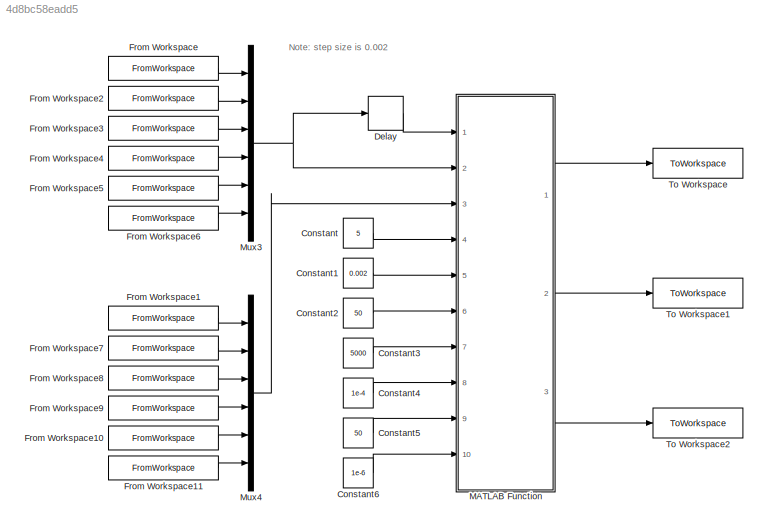
MODEL slx_4d8bc58eadd5
KIND model
CONFIG AbsTol = auto
CONFIG EnableMultiTasking = off
CONFIG FixedStep = 0.002
CONFIG MaxStep = auto
CONFIG MinStep = auto
CONFIG RelTol = 1e-3
CONFIG SampleTimeConstraint = Unconstrained
CONFIG SolverName = FixedStepAuto
CONFIG StartTime = 0.0
CONFIG StopTime = 10.0
BLOCK [Constant] Constant
  Value = 5
BLOCK [Constant] Constant1
  Value = 0.002
BLOCK [Constant] Constant2
  Value = 50
BLOCK [Constant] Constant3
  Value = 5000
BLOCK [Constant] Constant4
  Value = 1e-4
BLOCK [Constant] Constant5
  Value = 50
BLOCK [Constant] Constant6
  Value = 1e-6
BLOCK [Delay] Delay
  DelayLength = 1
  InitialCondition = 0
  InputPortMap = u0
  Ports = [1, 1]
BLOCK [FromWorkspace] From Workspace
  VariableName = [t lk(p_start:p_end,1)]
BLOCK [FromWorkspace] From Workspace1
  VariableName = [t l_star(p_start:p_end,1)]
BLOCK [FromWorkspace] From Workspace10
  VariableName = [t l_star(p_start:p_end,5)]
BLOCK [FromWorkspace] From Workspace11
  VariableName = [t l_star(p_start:p_end,6)]
BLOCK [FromWorkspace] From Workspace2
  VariableName = [t lk(p_start:p_end,2)]
BLOCK [FromWorkspace] From Workspace3
  VariableName = [t lk(p_start:p_end,3)]
BLOCK [FromWorkspace] From Workspace4
  VariableName = [t lk(p_start:p_end,4)]
BLOCK [FromWorkspace] From Workspace5
  VariableName = [t lk(p_start:p_end,5)]
BLOCK [FromWorkspace] From Workspace6
  VariableName = [t lk(p_start:p_end,6)]
BLOCK [FromWorkspace] From Workspace7
  VariableName = [t l_star(p_start:p_end,2)]
BLOCK [FromWorkspace] From Workspace8
  VariableName = [t l_star(p_start:p_end,3)]
BLOCK [FromWorkspace] From Workspace9
  VariableName = [t l_star(p_start:p_end,4)]
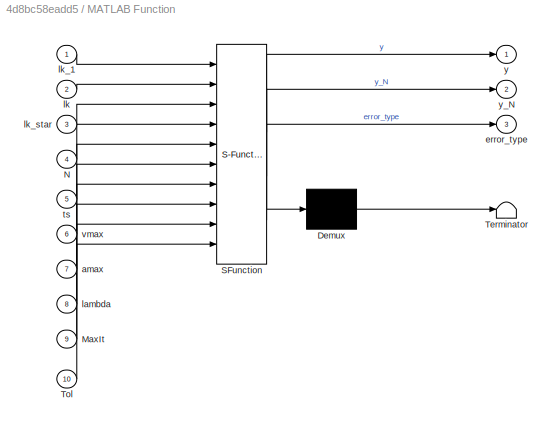
BLOCK [SubSystem] MATLAB Function
  ErrorFcn = Stateflow.Translate.translate
  PermitHierarchicalResolution = ExplicitOnly
  Ports = [10, 3]
  RequestExecContextInheritance = off
  SFBlockType = MATLAB Function
  TreatAsAtomicUnit = on
BLOCK [Demux] MATLAB Function/ Demux 
  Outputs = 1
  Ports = [1, 1]
BLOCK [S-Function] MATLAB Function/ SFunction 
  EnableBusSupport = on
  FunctionName = sf_sfun
  PortCounts = [10 4]
  Ports = [10, 4]
  SFcnIsStateOwnerBlock = off
  SFunctionDeploymentMode = off
  Tag = Stateflow S-Function 2
BLOCK [Terminator] MATLAB Function/ Terminator 
BLOCK [Inport] MATLAB Function/MaxIt
  Port = 9
BLOCK [Inport] MATLAB Function/N
  Port = 4
BLOCK [Inport] MATLAB Function/Tol
  Port = 10
BLOCK [Inport] MATLAB Function/amax
  Port = 7
BLOCK [Outport] MATLAB Function/error_type
  Port = 3
  VectorParamsAs1DForOutWhenUnconnected = off
BLOCK [Inport] MATLAB Function/lambda
  Port = 8
BLOCK [Inport] MATLAB Function/lk
  Port = 2
BLOCK [Inport] MATLAB Function/lk_1
BLOCK [Inport] MATLAB Function/lk_star
  Port = 3
BLOCK [Inport] MATLAB Function/ts
  Port = 5
BLOCK [Inport] MATLAB Function/vmax
  Port = 6
BLOCK [Outport] MATLAB Function/y
  VectorParamsAs1DForOutWhenUnconnected = off
BLOCK [Outport] MATLAB Function/y_N
  Port = 2
  VectorParamsAs1DForOutWhenUnconnected = off
BLOCK [Mux] Mux3
  DisplayOption = bar
  Inputs = 6
  Ports = [6, 1]
BLOCK [Mux] Mux4
  DisplayOption = bar
  Inputs = 6
  Ports = [6, 1]
BLOCK [ToWorkspace] To Workspace
  FixptAsFi = on
  MaxDataPoints = inf
  Ports = [1]
  SampleTime = -1
  Save2DSignal = 2-D array (concatenate along first dimension)
  VariableName = y
BLOCK [ToWorkspace] To Workspace1
  FixptAsFi = on
  MaxDataPoints = inf
  Ports = [1]
  SampleTime = -1
  Save2DSignal = 2-D array (concatenate along first dimension)
  VariableName = y_N
BLOCK [ToWorkspace] To Workspace2
  FixptAsFi = on
  MaxDataPoints = inf
  Ports = [1]
  SampleTime = -1
  Save2DSignal = 2-D array (concatenate along first dimension)
  VariableName = error
ANNOTATION (root): Note: step size is 0.002
LINE Constant1:1 -> MATLAB Function:5
LINE Constant2:1 -> MATLAB Function:6
LINE Constant3:1 -> MATLAB Function:7
LINE Constant4:1 -> MATLAB Function:8
LINE Constant5:1 -> MATLAB Function:9
LINE Constant6:1 -> MATLAB Function:10
LINE Constant:1 -> MATLAB Function:4
LINE Delay:1 -> MATLAB Function:1
LINE From Workspace10:1 -> Mux4:5
LINE From Workspace11:1 -> Mux4:6
LINE From Workspace1:1 -> Mux4:1
LINE From Workspace2:1 -> Mux3:2
LINE From Workspace3:1 -> Mux3:3
LINE From Workspace4:1 -> Mux3:4
LINE From Workspace5:1 -> Mux3:5
LINE From Workspace6:1 -> Mux3:6
LINE From Workspace7:1 -> Mux4:2
LINE From Workspace8:1 -> Mux4:3
LINE From Workspace9:1 -> Mux4:4
LINE From Workspace:1 -> Mux3:1
LINE MATLAB Function:1 -> To Workspace:1
LINE MATLAB Function:2 -> To Workspace1:1
LINE MATLAB Function:3 -> To Workspace2:1
NET Mux3:1 -> Delay:1, MATLAB Function:2
LINE Mux4:1 -> MATLAB Function:3
note: NET lines group one-source signal fan-out (src -> all destinations, sorted); 1:1 wires keep LINE
CHART MATLAB Function states=1 transitions=1
  STATE_LABEL 'eML_blk_kernel()'
  STATE_LABEL "SCRIPT:\nfunction [y, y_N , error_type] = fcn(lk_1,lk,lk_star,N,ts,vmax,amax,lambda,MaxIt,Tol)\n    y = zeros(6,1);\n    y_N = zeros(6,1);\n    error_type = zeros(6,1);\n    %% construct 6 axis mat\n    H = diag([2*lambda*ones(1,N-1) 1+lambda]) - 2*lambda*diag([ones(N-1,1)],-1);\n    H = 1/2*(H+H');\n    Av = eye(N) - diag(ones(N-1,1),-1);\n    Aa = eye(N) - 2*diag(ones(N-1,1),-1) + diag(ones(N-2,1),-2);\n ...<+1665ch>"
CHART  states=0 transitions=0
